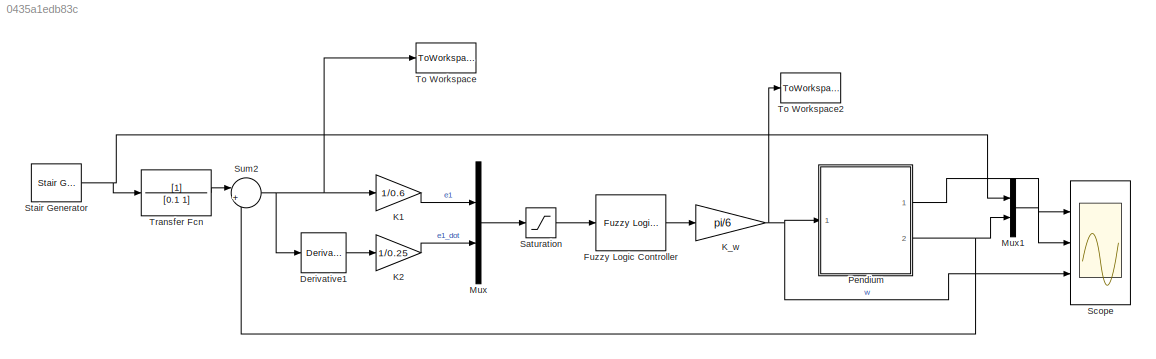
MODEL slx_0435a1edb83c
KIND model
CONFIG AbsTol = auto
CONFIG EnableMultiTasking = off
CONFIG FixedStep = 0.1
CONFIG MaxStep = auto
CONFIG MinStep = auto
CONFIG RelTol = 1e-3
CONFIG SampleTimeConstraint = Unconstrained
CONFIG Solver = ode5
CONFIG SolverName = ode5
CONFIG StartTime = 0.0
CONFIG StopTime = 60
BLOCK [Derivative] Derivative1
BLOCK [Reference] Fuzzy Logic Controller  REF=fuzblock/Fuzzy Logic   (lib defined in mdl_858b3b3e7478)
Controller
  Ports = [1, 1]
  SourceBlock = fuzblock/Fuzzy Logic \nController
  SourceProductBaseCode = FL
  SourceProductName = Fuzzy Logic Toolbox
  SourceType = Fuzzy Inference System
BLOCK [Gain] K1
  Gain = 1/0.6
  OutDataTypeStr = Inherit: Inherit via internal rule
  ParamDataTypeStr = Inherit: Inherit via internal rule
  SaturateOnIntegerOverflow = off
BLOCK [Gain] K2
  Gain = 1/0.25
  OutDataTypeStr = Inherit: Inherit via internal rule
  ParamDataTypeStr = Inherit: Inherit via internal rule
  SaturateOnIntegerOverflow = off
BLOCK [Gain] K_w
  Gain = pi/6
  OutDataTypeStr = Inherit: Inherit via internal rule
  ParamDataTypeStr = Inherit: Inherit via internal rule
  SaturateOnIntegerOverflow = off
BLOCK [Mux] Mux
  DisplayOption = bar
  Inputs = 2
  Ports = [2, 1]
BLOCK [Mux] Mux1
  DisplayOption = bar
  Inputs = 2
  Ports = [2, 1]
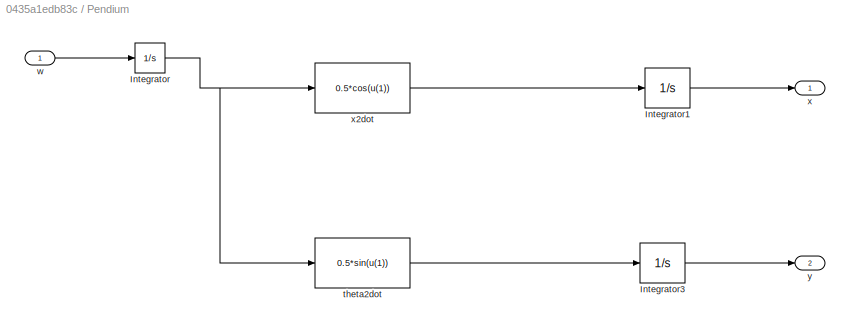
BLOCK [SubSystem] Pendium
  Ports = [1, 2]
  RequestExecContextInheritance = off
  Variant = off
BLOCK [Integrator] Pendium/Integrator
  Ports = [1, 1]
BLOCK [Integrator] Pendium/Integrator1
  Ports = [1, 1]
BLOCK [Integrator] Pendium/Integrator3
  Ports = [1, 1]
BLOCK [Fcn] Pendium/theta2dot
  Expr = 0.5*sin(u(1))
BLOCK [Inport] Pendium/w
  IconDisplay = Port number
BLOCK [Outport] Pendium/x
  IconDisplay = Port number
BLOCK [Fcn] Pendium/x2dot
  Expr = 0.5*cos(u(1))
BLOCK [Outport] Pendium/y
  IconDisplay = Port number
  Port = 2
BLOCK [Saturate] Saturation
  InputPortMap = u0
  LowerLimit = -1
  Ports = [1, 1]
  UpperLimit = 1
BLOCK [Scope] Scope
  NumInputPorts = 3
  Ports = [3]
  ScopeSpecificationString = Simulink.scopes.TimeScopeBlockCfg('CurrentConfiguration', extmgr.ConfigurationSet(extmgr.Configuration('Core','General UI',true,'FigureColor',[1 1 1]),extmgr.Configuration('Core','Source UI',true),extmgr.Configuration('Sources','WiredSimulink',true),extmgr.Configuration('Visuals','Time Domain',true,'SerializedDisplays',{struct('MinYLimReal','-3.72851','MaxYLimReal','33.55663','YLabelReal','','MinY...<+4579ch>
BLOCK [Reference] Stair Generator  REF=powerlib_meascontrol/Pulse & Signal
Generators/Stair
Generator
  Ports = [0, 1]
  SourceBlock = powerlib_meascontrol/Pulse & Signal\nGenerators/Stair\nGenerator
  SourceProductBaseCode = PS
  SourceProductName = Simscape Power Systems
  SourceType = Stair Generator
BLOCK [Sum] Sum2
  IconShape = round
  InputSameDT = off
  Inputs = |+-
  OutDataTypeStr = Inherit: Inherit via internal rule
  Ports = [2, 1]
  SaturateOnIntegerOverflow = off
BLOCK [ToWorkspace] To Workspace
  FixptAsFi = on
  MaxDataPoints = inf
  Ports = [1]
  SampleTime = -1
  Save2DSignal = 3-D array (concatenate along third dimension)
  VariableName = e
BLOCK [ToWorkspace] To Workspace2
  FixptAsFi = on
  MaxDataPoints = inf
  Ports = [1]
  SampleTime = -1
  Save2DSignal = 3-D array (concatenate along third dimension)
  VariableName = u
BLOCK [TransferFcn] Transfer Fcn
  Denominator = [0.1 1]
LINE Derivative1:1 -> K2:1
LINE Fuzzy Logic Controller:1 -> K_w:1
LINE K1:1 -> Mux:1
LINE K2:1 -> Mux:2
NET K_w:1 -> Pendium:1, Scope:3, To Workspace2:1
LINE Mux1:1 -> Scope:2
LINE Mux:1 -> Saturation:1
LINE Pendium/Integrator1:1 -> Pendium/x:1
LINE Pendium/Integrator3:1 -> Pendium/y:1
NET Pendium/Integrator:1 -> Pendium/theta2dot:1, Pendium/x2dot:1
LINE Pendium/theta2dot:1 -> Pendium/Integrator3:1
LINE Pendium/w:1 -> Pendium/Integrator:1
LINE Pendium/x2dot:1 -> Pendium/Integrator1:1
LINE Pendium:1 -> Scope:1
NET Pendium:2 -> Mux1:2, Sum2:2
LINE Saturation:1 -> Fuzzy Logic Controller:1
NET Stair Generator:1 -> Mux1:1, Transfer Fcn:1
NET Sum2:1 -> Derivative1:1, K1:1, To Workspace:1
LINE Transfer Fcn:1 -> Sum2:1
note: NET lines group one-source signal fan-out (src -> all destinations, sorted); 1:1 wires keep LINE
